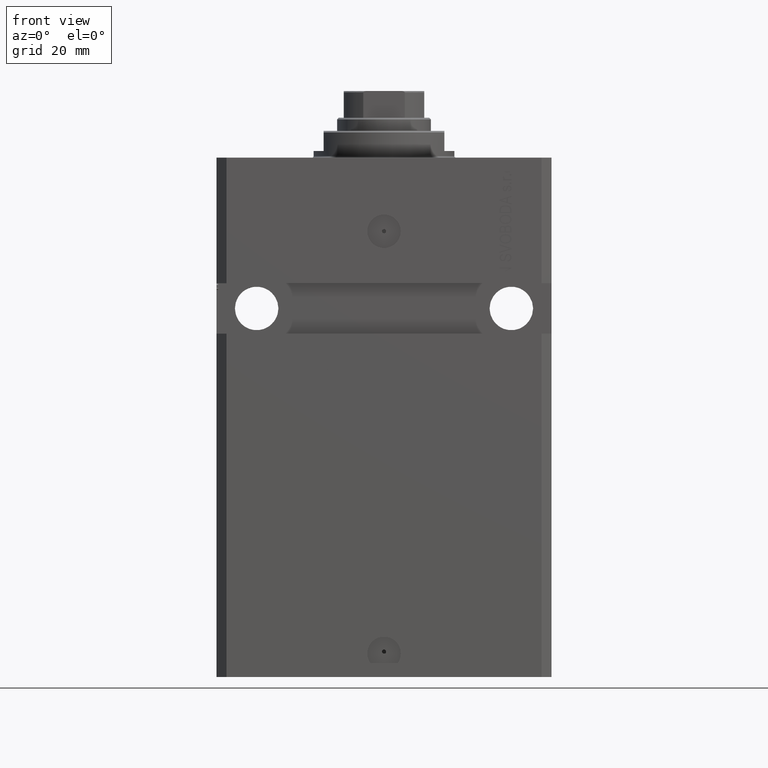
[diagram: clean part render]
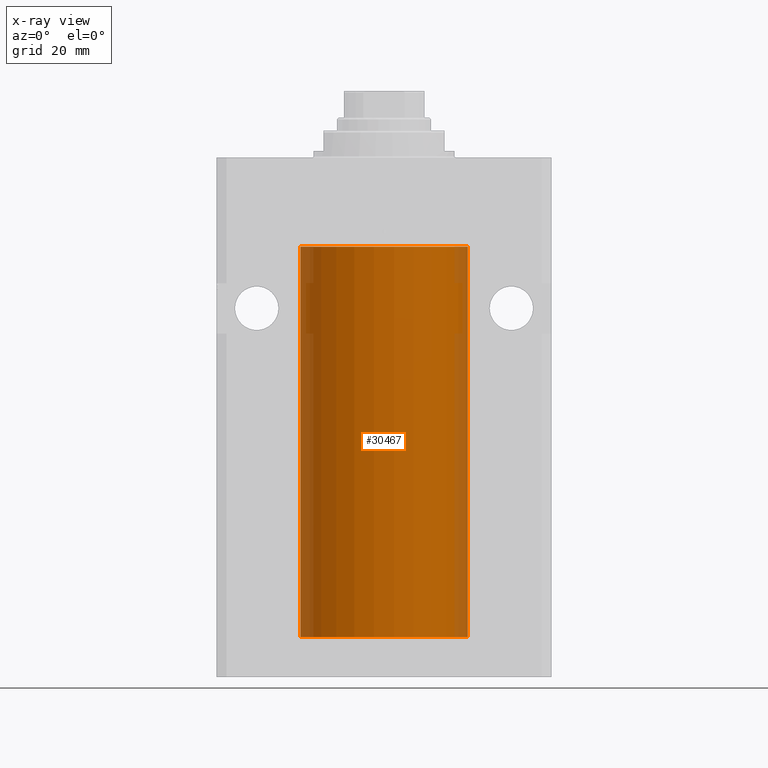
[diagram: x-ray — body ghosted, one internal face saturated and labeled with its STEP entity id]
A machine part, front view, then the same camera in x-ray: the body is ghosted and one INTERNAL B-rep face — a face not visible from any outside direction — is saturated and labeled: STEP entity #30467.
In plain terms, the highlighted cylindrical surface (partial cylindrical patch) has radius 25 mm, axis along (0, 0, 1).
Its self-contained STEP definition (entity closure, byte-faithful):
#1964 = CYLINDRICAL_SURFACE ( 'NONE', #46081, 25.00000000000000000 ) ;
#2897 = CARTESIAN_POINT ( 'NONE',  ( 0.000000000000000000, 0.000000000000000000, -26.60000000000000142 ) ) ;
#3440 = EDGE_CURVE ( 'NONE', #33103, #41967, #30636, .T. ) ;
#3552 = ORIENTED_EDGE ( 'NONE', *, *, #7248, .F. ) ;
#4047 = CARTESIAN_POINT ( 'NONE',  ( -24.99406145684571356, -0.5569515746259056099, -140.8270940848234432 ) ) ;
#4631 = VECTOR ( 'NONE', #24541, 1000.000000000000000 ) ;
#7248 = EDGE_CURVE ( 'NONE', #27869, #35977, #41054, .T. ) ;
#8072 = CARTESIAN_POINT ( 'NONE',  ( 25.00000000000000000, 0.000000000000000000, -143.0999999999999943 ) ) ;
#8786 = DIRECTION ( 'NONE',  ( -0.000000000000000000, -0.000000000000000000, 1.000000000000000000 ) ) ;
#10356 = LINE ( 'NONE', #21202, #40639 ) ;
#10624 = CARTESIAN_POINT ( 'NONE',  ( 25.00000000000000000, 0.000000000000000000, -26.60000000000000142 ) ) ;
#10930 = ORIENTED_EDGE ( 'NONE', *, *, #17946, .T. ) ;
#11914 = CARTESIAN_POINT ( 'NONE',  ( 0.000000000000000000, 0.000000000000000000, -143.0999999999999943 ) ) ;
#12587 = CARTESIAN_POINT ( 'NONE',  ( 0.000000000000000000, 0.000000000000000000, -143.0999999999999943 ) ) ;
#12662 = ORIENTED_EDGE ( 'NONE', *, *, #45702, .F. ) ;
#13250 = LINE ( 'NONE', #19990, #4631 ) ;
#14219 = DIRECTION ( 'NONE',  ( 1.000000000000000000, 0.000000000000000000, 0.000000000000000000 ) ) ;
#15993 = DIRECTION ( 'NONE',  ( 0.000000000000000000, 0.000000000000000000, 1.000000000000000000 ) ) ;
#17020 = CARTESIAN_POINT ( 'NONE',  ( -24.99812796309118923, -0.3269516851027416959, -139.9429046887701418 ) ) ;
#17946 = EDGE_CURVE ( 'NONE', #30740, #35977, #41935, .T. ) ;
#18735 = CARTESIAN_POINT ( 'NONE',  ( -24.99218973898648599, -0.6248616403601254810, -140.6653718335254553 ) ) ;
#19466 = CARTESIAN_POINT ( 'NONE',  ( -25.00000000000008171, 3.517566533863564531E-13, -141.1250000000032685 ) ) ;
#19611 = DIRECTION ( 'NONE',  ( 1.000000000000000000, 0.000000000000000000, 0.000000000000000000 ) ) ;
#19990 = CARTESIAN_POINT ( 'NONE',  ( -25.00000000000000000, 3.061616997868383043E-15, -143.0999999999999943 ) ) ;
#20032 = CIRCLE ( 'NONE', #20062, 25.00000000000000000 ) ;
#20062 = AXIS2_PLACEMENT_3D ( 'NONE', #11914, #15993, #19611 ) ;
#21202 = CARTESIAN_POINT ( 'NONE',  ( -25.00000000000000000, 3.061616997868383043E-15, -143.0999999999999943 ) ) ;
#21700 = ORIENTED_EDGE ( 'NONE', *, *, #32842, .T. ) ;
#21720 = VECTOR ( 'NONE', #8786, 1000.000000000000000 ) ;
#21756 = CARTESIAN_POINT ( 'NONE',  ( -25.00000000000000000, 3.061616997868383043E-15, -143.0999999999999943 ) ) ;
#23519 = ORIENTED_EDGE ( 'NONE', *, *, #3440, .T. ) ;
#24541 = DIRECTION ( 'NONE',  ( -0.000000000000000000, -0.000000000000000000, 1.000000000000000000 ) ) ;
#27869 = VERTEX_POINT ( 'NONE', #40136 ) ;
#29309 = ORIENTED_EDGE ( 'NONE', *, *, #41548, .T. ) ;
#29372 = DIRECTION ( 'NONE',  ( 0.000000000000000000, 0.000000000000000000, 1.000000000000000000 ) ) ;
#30467 = ADVANCED_FACE ( 'NONE', ( #31588 ), #1964, .F. ) ;
#30636 = B_SPLINE_CURVE_WITH_KNOTS ( 'NONE', 3,
 ( #36788, #40638, #37034, #4047, #18735, #31715, #31466, #17020, #31005, #38708 ),
 .UNSPECIFIED., .F., .F.,
 ( 4, 2, 2, 2, 4 ),
 ( 0.001954111766881379275, 0.002442529193076384015, 0.002930946619271388755, 0.003419364045466393495, 0.003907781471661398234 ),
 .UNSPECIFIED. ) ;
#30740 = VERTEX_POINT ( 'NONE', #42302 ) ;
#31005 = CARTESIAN_POINT ( 'NONE',  ( -25.00000000000000711, -0.1651503688830903982, -139.8750000000000284 ) ) ;
#31345 = DIRECTION ( 'NONE',  ( -0.000000000000000000, -0.000000000000000000, 1.000000000000000000 ) ) ;
#31466 = CARTESIAN_POINT ( 'NONE',  ( -24.99404783808661534, -0.5575587241817613338, -140.1738392125429868 ) ) ;
#31588 = FACE_OUTER_BOUND ( 'NONE', #31709, .T. ) ;
#31709 = EDGE_LOOP ( 'NONE', ( #12662, #21700, #23519, #29309, #10930, #3552 ) ) ;
#31715 = CARTESIAN_POINT ( 'NONE',  ( -24.99218282981962957, -0.6251379207535932014, -140.3356756471091558 ) ) ;
#31926 = AXIS2_PLACEMENT_3D ( 'NONE', #2897, #29372, #14219 ) ;
#32842 = EDGE_CURVE ( 'NONE', #43370, #33103, #13250, .T. ) ;
#33103 = VERTEX_POINT ( 'NONE', #19466 ) ;
#35977 = VERTEX_POINT ( 'NONE', #10624 ) ;
#36788 = CARTESIAN_POINT ( 'NONE',  ( -25.00000000000008171, 3.517566533863564531E-13, -141.1250000000032685 ) ) ;
#37034 = CARTESIAN_POINT ( 'NONE',  ( -24.99813644420121506, -0.3263088753891940641, -141.0574119792819374 ) ) ;
#38708 = CARTESIAN_POINT ( 'NONE',  ( -25.00000000000000000, -2.240465332326360227E-14, -139.8749999999999716 ) ) ;
#40136 = CARTESIAN_POINT ( 'NONE',  ( 25.00000000000000000, 0.000000000000000000, -143.0999999999999943 ) ) ;
#40638 = CARTESIAN_POINT ( 'NONE',  ( -25.00000000000000355, -0.1631302912503588276, -141.1250000000002274 ) ) ;
#40639 = VECTOR ( 'NONE', #46960, 1000.000000000000000 ) ;
#41054 = LINE ( 'NONE', #8072, #21720 ) ;
#41548 = EDGE_CURVE ( 'NONE', #41967, #30740, #10356, .T. ) ;
#41935 = CIRCLE ( 'NONE', #31926, 25.00000000000000000 ) ;
#41950 = DIRECTION ( 'NONE',  ( 1.000000000000000000, 0.000000000000000000, 0.000000000000000000 ) ) ;
#41967 = VERTEX_POINT ( 'NONE', #46670 ) ;
#42302 = CARTESIAN_POINT ( 'NONE',  ( -25.00000000000000000, 3.061616997868383043E-15, -26.60000000000000142 ) ) ;
#43370 = VERTEX_POINT ( 'NONE', #21756 ) ;
#45702 = EDGE_CURVE ( 'NONE', #43370, #27869, #20032, .T. ) ;
#46081 = AXIS2_PLACEMENT_3D ( 'NONE', #12587, #31345, #41950 ) ;
#46670 = CARTESIAN_POINT ( 'NONE',  ( -25.00000000000000000, -2.240465332326360227E-14, -139.8749999999999716 ) ) ;
#46960 = DIRECTION ( 'NONE',  ( -0.000000000000000000, -0.000000000000000000, 1.000000000000000000 ) ) ;